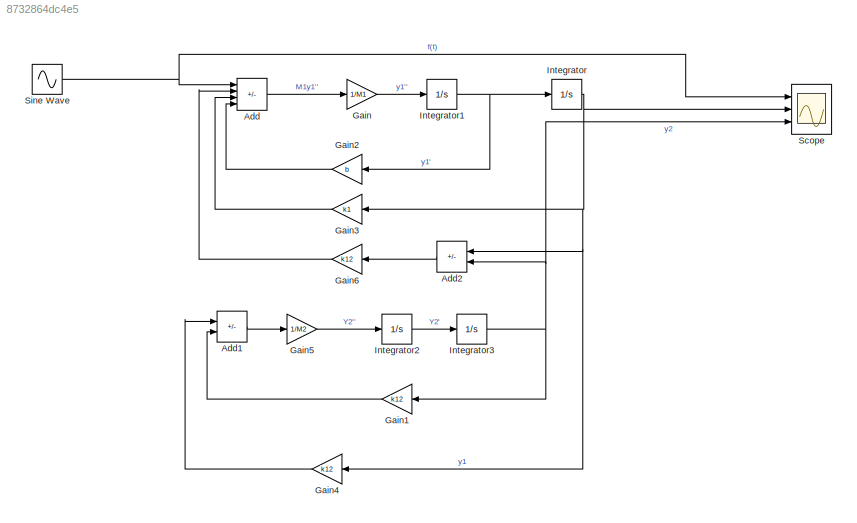
MODEL slx_8732864dc4e5
KIND model
CONFIG AbsTol = auto
CONFIG EnableMultiTasking = off
CONFIG FixedStep = auto
CONFIG MaxStep = auto
CONFIG MinStep = auto
CONFIG RelTol = 1e-3
CONFIG SampleTimeConstraint = Unconstrained
CONFIG SolverName = VariableStepAuto
CONFIG StartTime = 0.0
CONFIG StopTime = 10.0
BLOCK [Sum] Add
  IconShape = rectangular
  Inputs = +---
  Ports = [4, 1]
BLOCK [Sum] Add1
  IconShape = rectangular
  Inputs = +-
  Ports = [2, 1]
BLOCK [Sum] Add2
  IconShape = rectangular
  Inputs = +-
  Ports = [2, 1]
BLOCK [Gain] Gain
  Gain = 1/M1
BLOCK [Gain] Gain1
  Gain = k12
BLOCK [Gain] Gain2
  Gain = b
BLOCK [Gain] Gain3
  Gain = k1
BLOCK [Gain] Gain4
  Gain = k12
BLOCK [Gain] Gain5
  Gain = 1/M2
BLOCK [Gain] Gain6
  Gain = k12
BLOCK [Integrator] Integrator
  Ports = [1, 1]
BLOCK [Integrator] Integrator1
  Ports = [1, 1]
BLOCK [Integrator] Integrator2
  Ports = [1, 1]
BLOCK [Integrator] Integrator3
  Ports = [1, 1]
BLOCK [Scope] Scope
  Floating = off
  NumInputPorts = 3
  Ports = [3]
  ScopeSpecificationString = Simulink.scopes.TimeScopeBlockCfg('CurrentConfiguration', extmgr.ConfigurationSet(extmgr.Configuration('Core','General UI',true),extmgr.Configuration('Core','Source UI',true),extmgr.Configuration('Sources','WiredSimulink',true),extmgr.Configuration('Visuals','Time Domain',true,'SerializedDisplays',{struct('MinYLimReal','-2.49999','MaxYLimReal','2.5','YLabelReal','','MinYLimMag','0.00000','MaxYLimM...<+2682ch>
BLOCK [Sin] Sine Wave
  Amplitude = 2
  Frequency = 10
  Ports = [0, 1]
  SampleTime = 0
LINE Add1:1 -> Gain5:1
LINE Add2:1 -> Gain6:1
LINE Add:1 -> Gain:1
LINE Gain1:1 -> Add1:2
LINE Gain2:1 -> Add:4
LINE Gain3:1 -> Add:3
LINE Gain4:1 -> Add1:1
LINE Gain5:1 -> Integrator2:1
LINE Gain6:1 -> Add:2
LINE Gain:1 -> Integrator1:1
NET Integrator1:1 -> Gain2:1, Integrator:1
LINE Integrator2:1 -> Integrator3:1
NET Integrator3:1 -> Add2:2, Gain1:1, Scope:3
NET Integrator:1 -> Add2:1, Gain3:1, Gain4:1, Scope:2
NET Sine Wave:1 -> Add:1, Scope:1
note: NET lines group one-source signal fan-out (src -> all destinations, sorted); 1:1 wires keep LINE
